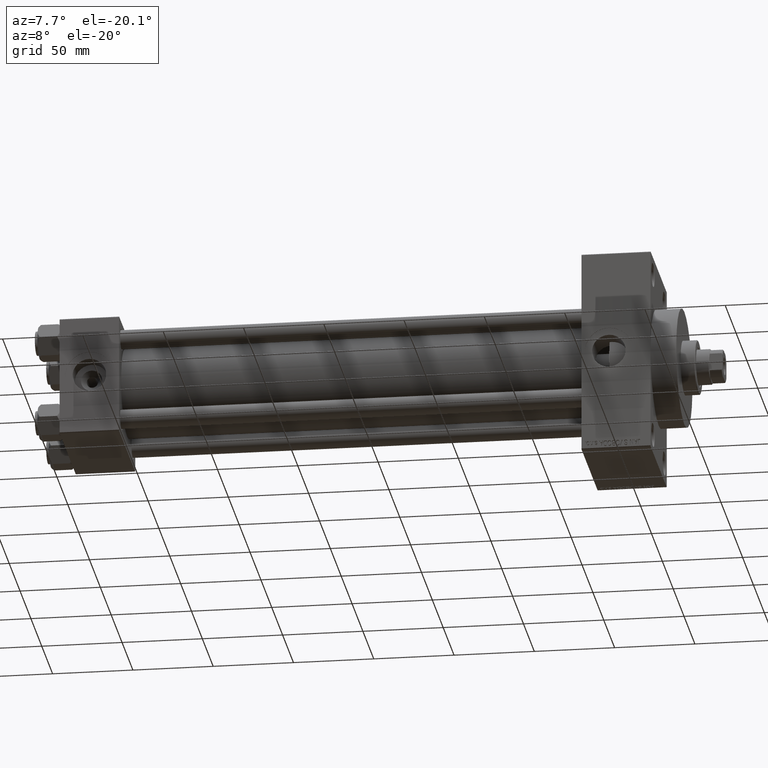
[diagram: clean part render]
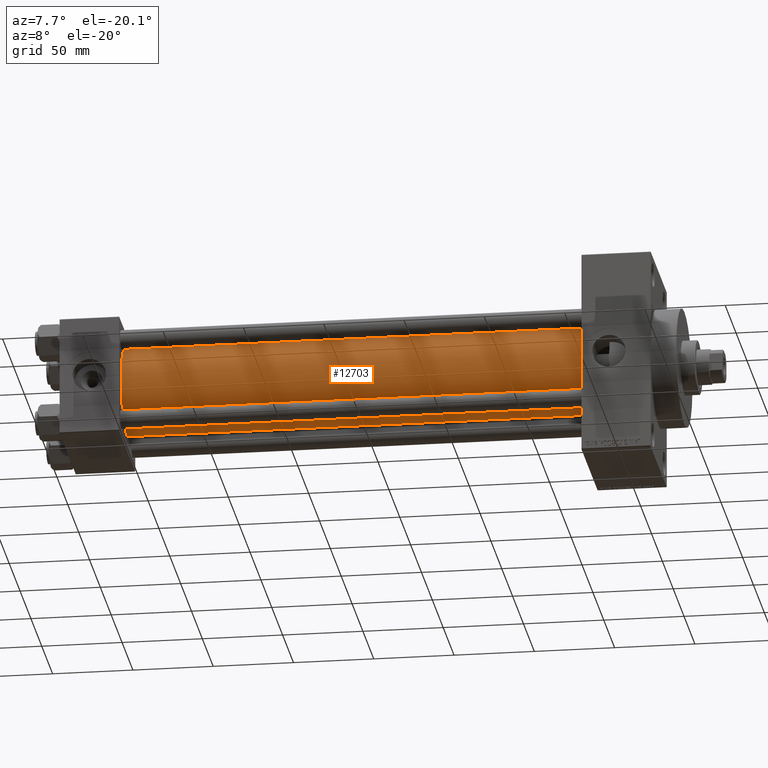
[diagram: same view with one face highlighted and labeled with its STEP entity id]
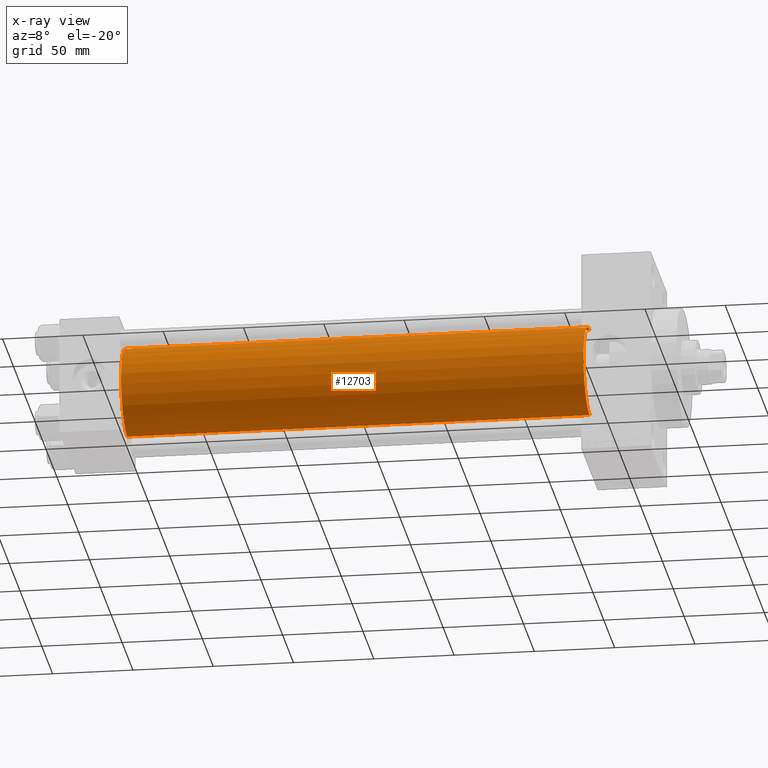
[diagram: x-ray of the same camera — body ghosted, the highlighted face saturated]
A machine part, auxiliary view. The second image highlights one B-rep face of the part: STEP entity #12703.
The next image is the same camera in x-ray: the body ghosted, the highlighted face saturated — about 0% of this face is hidden behind the body in this view.
In plain terms, the highlighted cylindrical surface (partial cylindrical patch) has radius 28 mm, axis along (-1, -0, -0).
Its self-contained STEP definition (entity closure, byte-faithful):
#1390 = ORIENTED_EDGE ( 'NONE', *, *, #39947, .T. ) ;
#2525 = CYLINDRICAL_SURFACE ( 'NONE', #13119, 28.00000000000000000 ) ;
#3405 = CARTESIAN_POINT ( 'NONE',  ( 324.9999999999999432, -2.602085213965210642E-15, 28.00000000000000000 ) ) ;
#5273 = CIRCLE ( 'NONE', #26758, 28.00000000000000000 ) ;
#5779 = DIRECTION ( 'NONE',  ( -1.000000000000000000, -0.000000000000000000, -0.000000000000000000 ) ) ;
#8854 = DIRECTION ( 'NONE',  ( -1.000000000000000000, -0.000000000000000000, -0.000000000000000000 ) ) ;
#9782 = VERTEX_POINT ( 'NONE', #34454 ) ;
#9929 = ORIENTED_EDGE ( 'NONE', *, *, #36014, .F. ) ;
#12703 = ADVANCED_FACE ( 'NONE', ( #43646 ), #2525, .T. ) ;
#13119 = AXIS2_PLACEMENT_3D ( 'NONE', #48120, #5779, #44634 ) ;
#15950 = DIRECTION ( 'NONE',  ( -1.000000000000000000, -0.000000000000000000, -0.000000000000000000 ) ) ;
#16679 = LINE ( 'NONE', #35618, #22138 ) ;
#19869 = VECTOR ( 'NONE', #8854, 1000.000000000000000 ) ;
#21052 = DIRECTION ( 'NONE',  ( 1.000000000000000000, 0.000000000000000000, 0.000000000000000000 ) ) ;
#21435 = DIRECTION ( 'NONE',  ( 0.000000000000000000, 0.000000000000000000, 1.000000000000000000 ) ) ;
#22138 = VECTOR ( 'NONE', #15950, 1000.000000000000000 ) ;
#23086 = EDGE_LOOP ( 'NONE', ( #9929, #32949, #1390, #33354 ) ) ;
#24293 = LINE ( 'NONE', #35248, #19869 ) ;
#24665 = CIRCLE ( 'NONE', #38985, 28.00000000000000000 ) ;
#24789 = CARTESIAN_POINT ( 'NONE',  ( 324.9999999999999432, -2.602085213965210642E-15, 0.000000000000000000 ) ) ;
#26758 = AXIS2_PLACEMENT_3D ( 'NONE', #24789, #21052, #39492 ) ;
#27488 = VERTEX_POINT ( 'NONE', #32352 ) ;
#31761 = EDGE_CURVE ( 'NONE', #48785, #9782, #5273, .T. ) ;
#32352 = CARTESIAN_POINT ( 'NONE',  ( 36.99999999999997868, -2.602085213965210642E-15, 28.00000000000000000 ) ) ;
#32949 = ORIENTED_EDGE ( 'NONE', *, *, #31761, .F. ) ;
#33354 = ORIENTED_EDGE ( 'NONE', *, *, #44180, .T. ) ;
#33636 = CARTESIAN_POINT ( 'NONE',  ( 36.99999999999997868, -2.602085213965210642E-15, 0.000000000000000000 ) ) ;
#34454 = CARTESIAN_POINT ( 'NONE',  ( 324.9999999999999432, 8.269258236473784371E-16, -28.00000000000000000 ) ) ;
#35248 = CARTESIAN_POINT ( 'NONE',  ( 324.9999999999999432, -2.602085213965210642E-15, 28.00000000000000000 ) ) ;
#35618 = CARTESIAN_POINT ( 'NONE',  ( 324.9999999999999432, 8.269258236473784371E-16, -28.00000000000000000 ) ) ;
#36014 = EDGE_CURVE ( 'NONE', #9782, #47332, #16679, .T. ) ;
#38985 = AXIS2_PLACEMENT_3D ( 'NONE', #33636, #48847, #21435 ) ;
#39492 = DIRECTION ( 'NONE',  ( 0.000000000000000000, 0.000000000000000000, -1.000000000000000000 ) ) ;
#39947 = EDGE_CURVE ( 'NONE', #48785, #27488, #24293, .T. ) ;
#43646 = FACE_OUTER_BOUND ( 'NONE', #23086, .T. ) ;
#44132 = CARTESIAN_POINT ( 'NONE',  ( 36.99999999999997868, 8.269258236473784371E-16, -28.00000000000000000 ) ) ;
#44180 = EDGE_CURVE ( 'NONE', #27488, #47332, #24665, .T. ) ;
#44634 = DIRECTION ( 'NONE',  ( 0.000000000000000000, 0.000000000000000000, 1.000000000000000000 ) ) ;
#47332 = VERTEX_POINT ( 'NONE', #44132 ) ;
#48120 = CARTESIAN_POINT ( 'NONE',  ( 324.9999999999999432, -2.602085213965210642E-15, 0.000000000000000000 ) ) ;
#48785 = VERTEX_POINT ( 'NONE', #3405 ) ;
#48847 = DIRECTION ( 'NONE',  ( 1.000000000000000000, -0.000000000000000000, 0.000000000000000000 ) ) ;